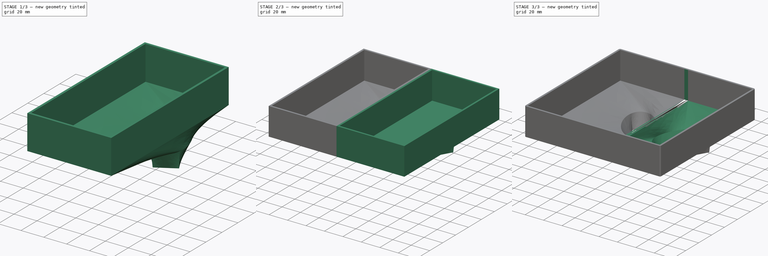
[diagram: build sequence overview — one tinted view per stage of 3, left to right]
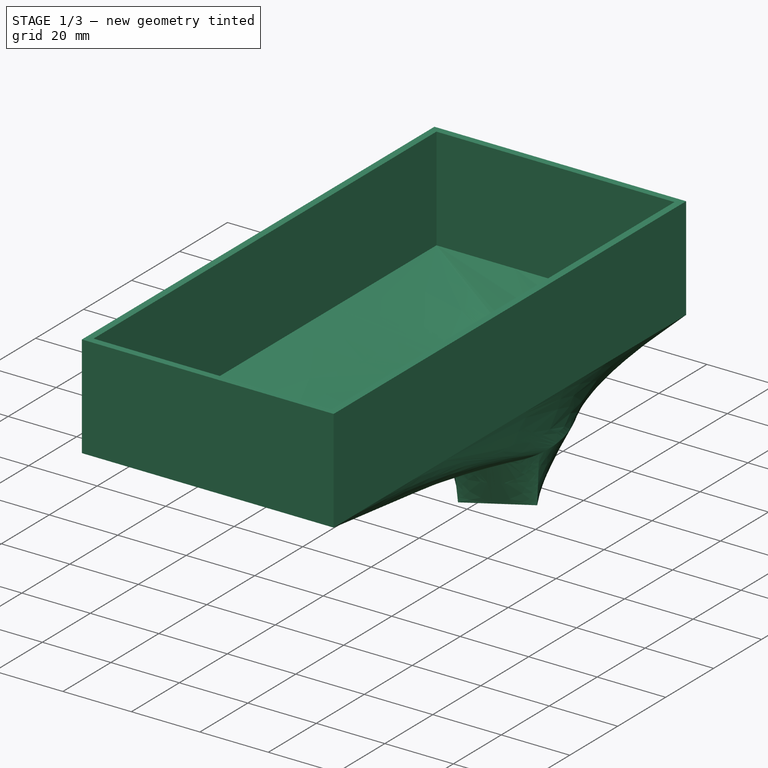
[diagram: stage 1 of 3 — iso view after this stage's code; geometry added in this stage tinted green]
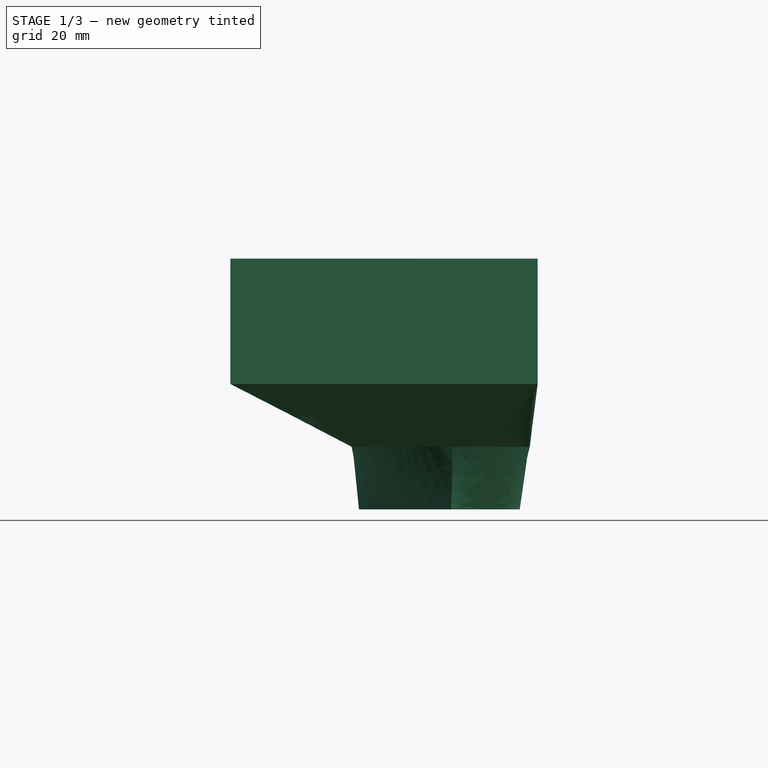
[diagram: stage 1 of 3 — front view after this stage's code; geometry added in this stage tinted green]
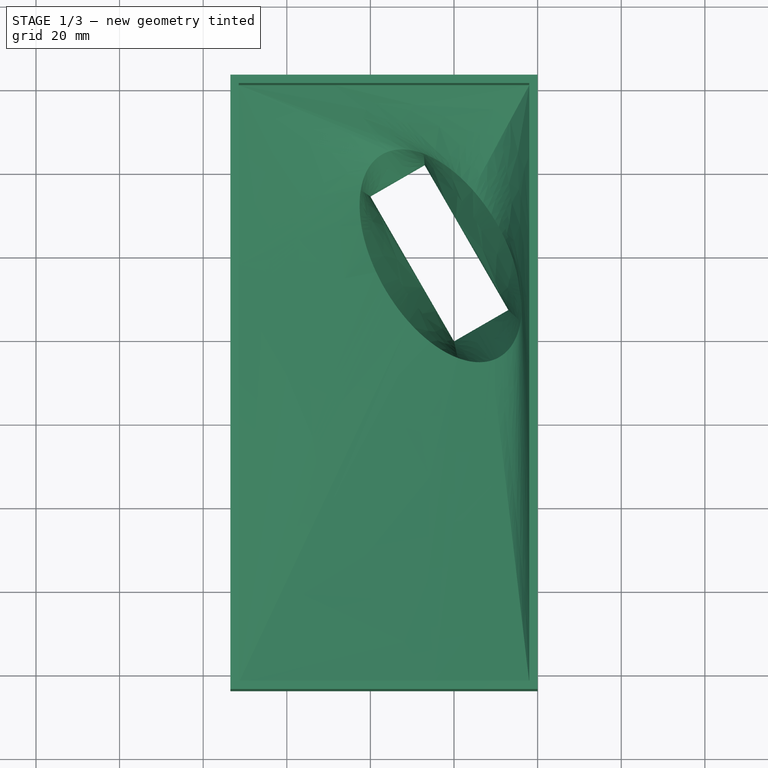
[diagram: stage 1 of 3 — top view after this stage's code; geometry added in this stage tinted green]
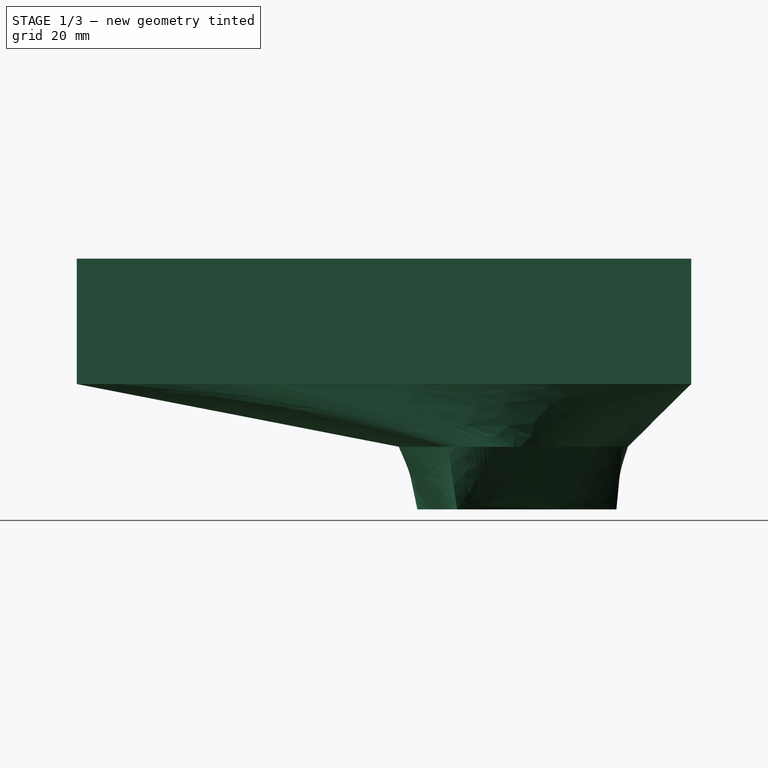
[diagram: stage 1 of 3 — right view after this stage's code; geometry added in this stage tinted green]
FCSTD DOCUMENT  (FreeCAD 0.20R29177 +426 (Git))
Label: seed_chute
License: All rights reserved
LicenseURL: http://en.wikipedia.org/wiki/All_rights_reserved
objects: Sketcher::SketchObject×7, PartDesign::Mirrored×3, PartDesign::AdditiveLoft×1, PartDesign::SubtractiveLoft×1, PartDesign::Pad×1, PartDesign::Pocket×1, PartDesign::Chamfer×1, PartDesign::Body×1, PartDesign::CoordinateSystem×1, App::Part×1
note: 22 computed .brp shape members not serialized (recipe doc carries the construction recipe); baked Part::Feature solids carry a one-line shape summary decoded from their .brp

FEATURE [Sketcher::SketchObject] Sketch  label="base_out"
  FullyConstrained = true
  MapMode = 5
  Support = -> [XY_Plane]
  sketch-geometry (12):
    g0: LineSegment StartX=-4.27745 StartY=6.76795 StartZ=0 EndX=-20.7319 EndY=-2.73205 EndZ=0
    g1: LineSegment StartX=-20.7319 StartY=-2.73205 StartZ=0 EndX=-42.7319 EndY=35.3731 EndZ=0
    g2: LineSegment StartX=-42.7319 StartY=35.3731 StartZ=0 EndX=-26.2774 EndY=44.8731 EndZ=0
    g3: LineSegment StartX=-26.2774 StartY=44.8731 StartZ=0 EndX=-4.27745 EndY=6.76795 EndZ=0
    g4: LineSegment StartX=-27.0095 StartY=42.141 StartZ=0 EndX=-39.9999 EndY=34.641 EndZ=0
    g5: LineSegment StartX=-39.9999 StartY=34.641 StartZ=0 EndX=-19.9999 EndY=0 EndZ=0
    g6: LineSegment StartX=-19.9999 StartY=0 StartZ=0 EndX=-7.0095 EndY=7.5 EndZ=0
    g7: LineSegment StartX=-7.0095 StartY=7.5 StartZ=0 EndX=-27.0095 EndY=42.141 EndZ=0
    g8: LineSegment StartX=-27.0095 StartY=42.141 StartZ=0 EndX=-28.0095 EndY=43.8731 EndZ=0
    g9: LineSegment StartX=-27.0095 StartY=42.141 StartZ=0 EndX=-25.2774 EndY=43.141 EndZ=0
    g10: LineSegment StartX=-19.9999 StartY=0 StartZ=0 EndX=-18.9999 EndY=-1.73205 EndZ=0
    g11: LineSegment StartX=-19.9999 StartY=0 StartZ=0 EndX=-21.7319 EndY=-1 EndZ=0
  constraints (36):
    c: Coincident(g1,g0)
    c: Coincident(g2,g1)
    c: Coincident(g3,g2)
    c: Coincident(g3,g0)
    c: Parallel(g1,g3)
    c: Parallel(g0,g2)
    c: Perpendicular(g3,g0)
    c: Angle(g-1,g1) = 2.0944
    c: Coincident(g5,g4)
    c: Coincident(g6,g5)
    c: Coincident(g7,g6)
    c: Coincident(g7,g4)
    c: DistanceX(g6,g-1) = 7.0095
    c: Parallel(g6,g0)
    c: Parallel(g6,g4)
    c: Parallel(g5,g7)
    c: Perpendicular(g4,g7)
    c: PointOnObject(g5,g-1)
    c: Coincident(g8,g4)
    c: PointOnObject(g8,g2)
    c: Coincident(g9,g4)
    c: PointOnObject(g9,g3)
    c: Coincident(g10,g5)
    c: PointOnObject(g10,g0)
    c: Coincident(g11,g5)
    c: PointOnObject(g11,g1)
    c: Perpendicular(g5,g11)
    c: Perpendicular(g6,g10)
    c: Perpendicular(g7,g9)
    c: Perpendicular(g8,g4)
    c: Equal(g9,g8)
    c: Equal(g8,g10)
    c: Equal(g10,g11)
    c: Distance(g11) = 2
    c: Distance(g6) = 15
    c: Distance(g7) = 40
FEATURE [Sketcher::SketchObject] Sketch001  label="mid_rect"
  AttachmentOffset = pos=(0,0,15) rot=(0,0,1;0rad)
  FullyConstrained = true
  MapMode = 5
  Placement = pos=(0,0,15) rot=(0,0,1;0rad)
  Support = -> [XY_Plane]
  sketch-geometry (4):
    g0: LineSegment StartX=0 StartY=7.5 StartZ=0 EndX=-23.3827 EndY=-6 EndZ=0
    g1: LineSegment StartX=-23.3827 StartY=-6 StartZ=0 EndX=-48.3827 EndY=37.3013 EndZ=0
    g2: LineSegment StartX=-48.3827 StartY=37.3013 StartZ=0 EndX=-25 EndY=50.8013 EndZ=0
    g3: LineSegment StartX=-25 StartY=50.8013 StartZ=0 EndX=0 EndY=7.5 EndZ=0
  constraints (12):
    c: Coincident(g1,g0)
    c: Coincident(g2,g1)
    c: Coincident(g3,g2)
    c: Coincident(g3,g0)
    c: Perpendicular(g3,g0)
    c: Parallel(g3,g1)
    c: Parallel(g0,g2)
    c: Angle(g-1,g1) = 2.0944
    c: PointOnObject(g0,g-2)
    c: Distance(g0) = 27
    c: Distance(g3) = 50
    c: DistanceY(g-1,g0) = 7.5
FEATURE [Sketcher::SketchObject] Sketch002  label="semifinal_out"
  AttachmentOffset = pos=(0,0,30) rot=(0,0,1;0rad)
  FullyConstrained = true
  MapMode = 5
  Placement = pos=(0,0,30) rot=(0,0,1;0rad)
  Support = -> [XY_Plane]
  sketch-geometry (4):
    g0: LineSegment StartX=-73.5 StartY=62.782 StartZ=0 EndX=0 EndY=62.782 EndZ=0
    g1: LineSegment StartX=0 StartY=62.782 StartZ=0 EndX=0 EndY=-84.218 EndZ=0
    g2: LineSegment StartX=0 StartY=-84.218 StartZ=0 EndX=-73.5 EndY=-84.218 EndZ=0
    g3: LineSegment StartX=-73.5 StartY=-84.218 StartZ=0 EndX=-73.5 EndY=62.782 EndZ=0
  constraints (12):
    c: Coincident(g0,g1)
    c: Coincident(g1,g2)
    c: Coincident(g2,g3)
    c: Coincident(g3,g0)
    c: Horizontal(g0)
    c: Horizontal(g2)
    c: Vertical(g1)
    c: Vertical(g3)
    c: DistanceY(g3,g3) = 147
    c: PointOnObject(g1,g-2)
    c: DistanceX(g2,g2) = 73.5
    c: DistanceY(g-1,g0) = 62.782
FEATURE [Sketcher::SketchObject] Sketch003  label="mid_ellipse_out"
  AttachmentOffset = pos=(0,0,15) rot=(0,0,1;0rad)
  FullyConstrained = true
  MapMode = 5
  Placement = pos=(0,0,15) rot=(0,0,1;0rad)
  Support = -> [XY_Plane]
  sketch-geometry (5):
    g0: Ellipse CenterX=-23.1936 CenterY=20.2155 CenterZ=0 NormalX=0 NormalY=0 NormalZ=1 MajorRadius=30 MinorRadius=17.5 AngleXU=-1.0472
    g1: LineSegment StartX=-8.19358 StartY=-5.76524 StartZ=0 EndX=-38.1936 EndY=46.1963 EndZ=0
    g2: LineSegment StartX=-8.03814 StartY=28.9655 StartZ=0 EndX=-38.349 EndY=11.4655 EndZ=0
    g3: GeomPoint X=-11.0101 Y=-0.886906 Z=0
    g4: GeomPoint X=-35.3771 Y=41.318 Z=0
  constraints (6):
    c: InternalAlignment(g1-g4 -> g0) x4
    c: Angle(g-1,g1) = 2.0944
    c: Distance(g1) = 60
    c: DistanceX(g0) = -23.1936
    c: DistanceY(g0) = 20.2155
    c: Distance(g2) = 35
FEATURE [Sketcher::SketchObject] Sketch004  label="base_in"
  FullyConstrained = true
  MapMode = 5
  Support = -> [XY_Plane]
  sketch-geometry (4):
    g0: LineSegment StartX=-19.9999 StartY=0 StartZ=0 EndX=-7.0095 EndY=7.5 EndZ=0
    g1: LineSegment StartX=-7.0095 StartY=7.5 StartZ=0 EndX=-27.0095 EndY=42.141 EndZ=0
    g2: LineSegment StartX=-27.0095 StartY=42.141 StartZ=0 EndX=-39.9999 EndY=34.641 EndZ=0
    g3: LineSegment StartX=-39.9999 StartY=34.641 StartZ=0 EndX=-19.9999 EndY=0 EndZ=0
  constraints (12):
    c: PointOnObject(g0,g-1)
    c: Coincident(g2,g1)
    c: Coincident(g3,g2)
    c: Coincident(g3,g0)
    c: Coincident(g0,g1)
    c: Perpendicular(g1,g0)
    c: Parallel(g1,g3)
    c: Parallel(g2,g0)
    c: DistanceX(g0,g-1) = 7.0095
    c: Angle(g-1,g3) = 2.0944
    c: Distance(g0) = 15
    c: Distance(g1) = 40
FEATURE [Sketcher::SketchObject] Sketch005  label="mid_ellipse_in"
  AttachmentOffset = pos=(0,0,15) rot=(0,0,1;0rad)
  FullyConstrained = true
  MapMode = 5
  Placement = pos=(0,0,15) rot=(0,0,1;0rad)
  Support = -> [XY_Plane]
  expr: Constraints[4] = Sketch003.Constraints[4]
  expr: Constraints[5] = Sketch003.Constraints[5]
  expr: Constraints[6] = Sketch003.Constraints[6]
  expr: Constraints[7] = Sketch003.Constraints[7]
  expr: Constraints[8] = Sketch003.Constraints[8]
  sketch-geometry (10):
    g0: Ellipse CenterX=-23.1936 CenterY=20.2155 CenterZ=0 NormalX=0 NormalY=0 NormalZ=1 MajorRadius=30 MinorRadius=17.5 AngleXU=-1.0472
    g1: LineSegment StartX=-8.19358 StartY=-5.76524 StartZ=0 EndX=-38.1936 EndY=46.1963 EndZ=0
    g2: LineSegment StartX=-8.03814 StartY=28.9655 StartZ=0 EndX=-38.349 EndY=11.4655 EndZ=0
    g3: GeomPoint X=-11.0101 Y=-0.886906 Z=0
    g4: GeomPoint X=-35.3771 Y=41.318 Z=0
    g5: Ellipse CenterX=-23.1936 CenterY=20.2155 CenterZ=0 NormalX=0 NormalY=0 NormalZ=1 MajorRadius=28 MinorRadius=15.5 AngleXU=-1.0472
    g6: LineSegment StartX=-9.19358 StartY=-4.03319 StartZ=0 EndX=-37.1936 EndY=44.4642 EndZ=0
    g7: LineSegment StartX=-9.77019 StartY=27.9655 StartZ=0 EndX=-36.617 EndY=12.4655 EndZ=0
    g8: GeomPoint X=-11.5344 Y=0.021155 Z=0
    g9: GeomPoint X=-34.8528 Y=40.4099 Z=0
  constraints (11):
    c: InternalAlignment(g1-g4 -> g0) x4
    c: Angle(g-1,g1) = 2.0944
    c: Distance(g1) = 60
    c: DistanceX(g0) = -23.1936
    c: DistanceY(g0) = 20.2155
    c: Distance(g2) = 35
    c: InternalAlignment(g6-g9 -> g5) x4
    c: Coincident(g5,g0)
    c: PointOnObject(g6,g1)
    c: Distance(g7,g2) = 2
    c: Distance(g6,g1) = 2
FEATURE [Sketcher::SketchObject] Sketch006  label="semifinal_in"
  AttachmentOffset = pos=(0,0,30) rot=(0,0,1;0rad)
  FullyConstrained = true
  MapMode = 5
  Placement = pos=(0,0,30) rot=(0,0,1;0rad)
  Support = -> [XY_Plane]
  expr: Constraints[16] = Sketch002.Constraints[8]
  expr: Constraints[18] = Sketch002.Constraints[10]
  expr: Constraints[19] = Sketch002.Constraints[11]
  sketch-geometry (12):
    g0: LineSegment StartX=-71.5 StartY=60.782 StartZ=0 EndX=-2 EndY=60.782 EndZ=0
    g1: LineSegment StartX=-2 StartY=60.782 StartZ=0 EndX=-2 EndY=-82.218 EndZ=0
    g2: LineSegment StartX=-2 StartY=-82.218 StartZ=0 EndX=-71.5 EndY=-82.218 EndZ=0
    g3: LineSegment StartX=-71.5 StartY=-82.218 StartZ=0 EndX=-71.5 EndY=60.782 EndZ=0
    g4: LineSegment StartX=-73.5 StartY=62.782 StartZ=0 EndX=0 EndY=62.782 EndZ=0
    g5: LineSegment StartX=0 StartY=62.782 StartZ=0 EndX=0 EndY=-84.218 EndZ=0
    g6: LineSegment StartX=0 StartY=-84.218 StartZ=0 EndX=-73.5 EndY=-84.218 EndZ=0
    g7: LineSegment StartX=-73.5 StartY=-84.218 StartZ=0 EndX=-73.5 EndY=62.782 EndZ=0
    g8: LineSegment StartX=-71.5 StartY=60.782 StartZ=0 EndX=-71.5 EndY=62.782 EndZ=0
    g9: LineSegment StartX=-71.5 StartY=60.782 StartZ=0 EndX=-73.5 EndY=60.782 EndZ=0
    g10: LineSegment StartX=-2 StartY=-82.218 StartZ=0 EndX=-2 EndY=-84.218 EndZ=0
    g11: LineSegment StartX=-2 StartY=-82.218 StartZ=0 EndX=0 EndY=-82.218 EndZ=0
  constraints (36):
    c: Coincident(g0,g1)
    c: Coincident(g1,g2)
    c: Coincident(g2,g3)
    c: Coincident(g3,g0)
    c: Horizontal(g0)
    c: Horizontal(g2)
    c: Vertical(g1)
    c: Vertical(g3)
    c: Coincident(g4,g5)
    c: Coincident(g5,g6)
    c: Coincident(g6,g7)
    c: Coincident(g7,g4)
    c: Horizontal(g4)
    c: Horizontal(g6)
    c: Vertical(g5)
    c: Vertical(g7)
    c: DistanceY(g7,g7) = 147
    c: PointOnObject(g5,g-2)
    c: DistanceX(g6,g6) = 73.5
    c: DistanceY(g-1,g4) = 62.782
    c: Coincident(g8,g0)
    c: PointOnObject(g8,g4)
    c: Coincident(g9,g0)
    c: PointOnObject(g9,g7)
    c: Horizontal(g9)
    c: Vertical(g8)
    c: Coincident(g10,g1)
    c: PointOnObject(g10,g6)
    c: Vertical(g10)
    c: Coincident(g11,g1)
    c: PointOnObject(g11,g5)
    c: Horizontal(g11)
    c: Equal(g11,g10)
    c: Equal(g10,g9)
    c: Equal(g9,g8)
    c: DistanceY(g8,g8) = 2
FEATURE [PartDesign::AdditiveLoft] AdditiveLoft
  Closed = false
  Profile = -> Sketch
  Ruled = true
  Sections = -> [Sketch003,Sketch002]
FEATURE [PartDesign::SubtractiveLoft] SubtractiveLoft
  BaseFeature = -> AdditiveLoft
  Closed = false
  Profile = -> Sketch004
  Ruled = true
  Sections = -> [Sketch005,Sketch006]
FEATURE [PartDesign::Pad] Pad
  BaseFeature = -> SubtractiveLoft
  Direction = (0,0,1)
  Length = 30
  Length2 = 10
  Profile = -> SubtractiveLoft [Face38]
  Type = 0
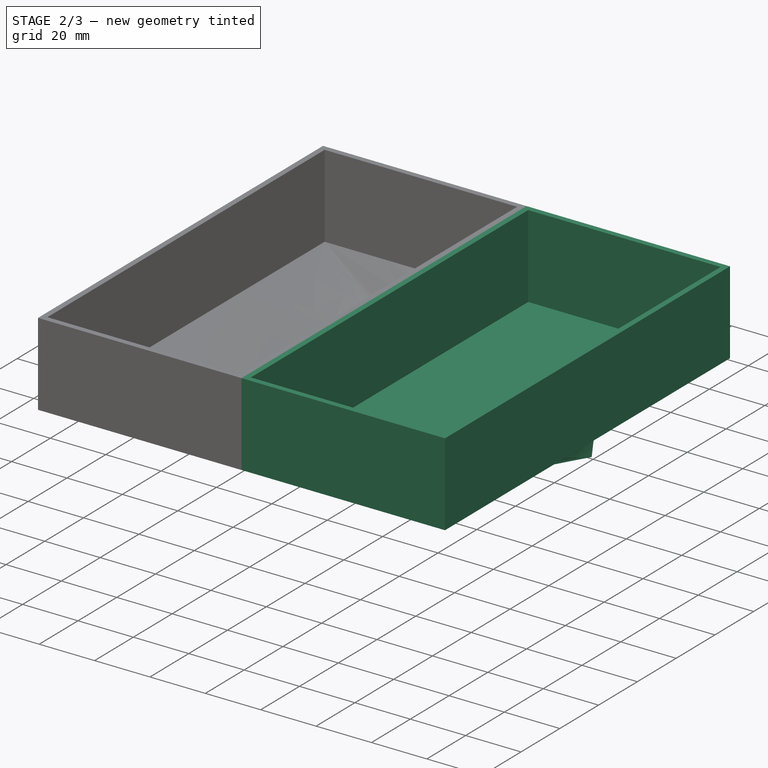
[diagram: stage 2 of 3 — iso view after this stage's code; geometry added in this stage tinted green]
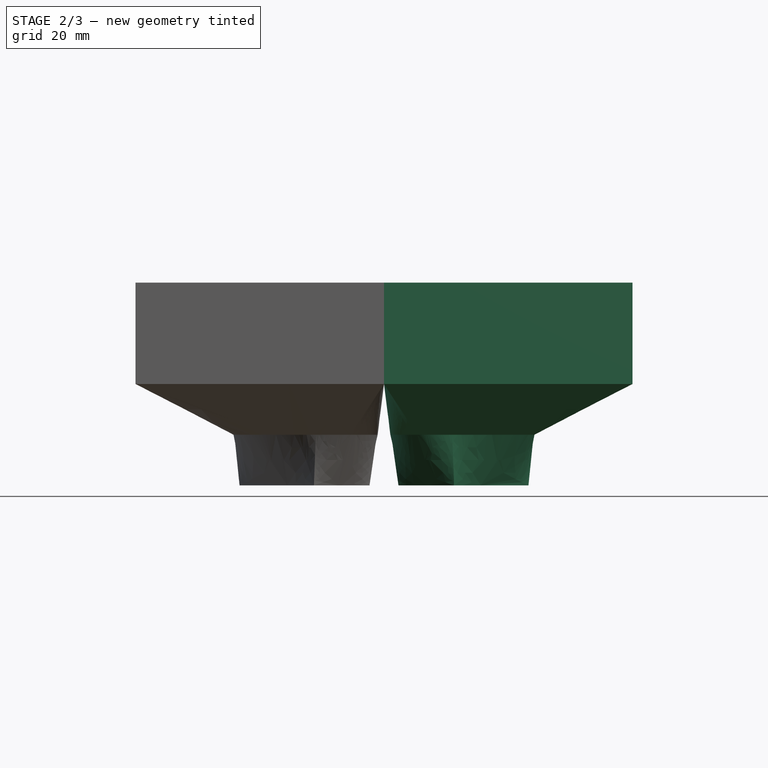
[diagram: stage 2 of 3 — front view after this stage's code; geometry added in this stage tinted green]
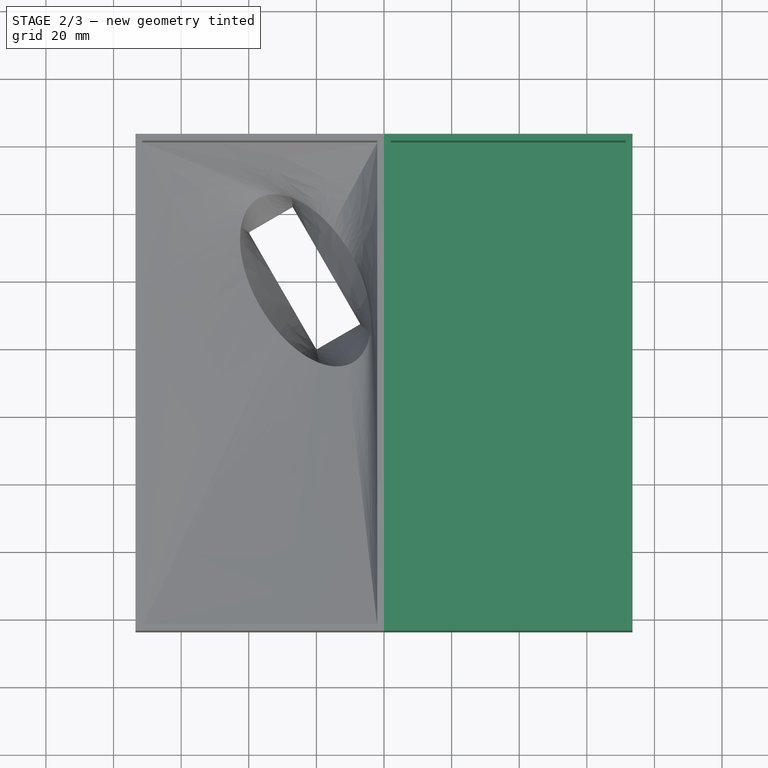
[diagram: stage 2 of 3 — top view after this stage's code; geometry added in this stage tinted green]
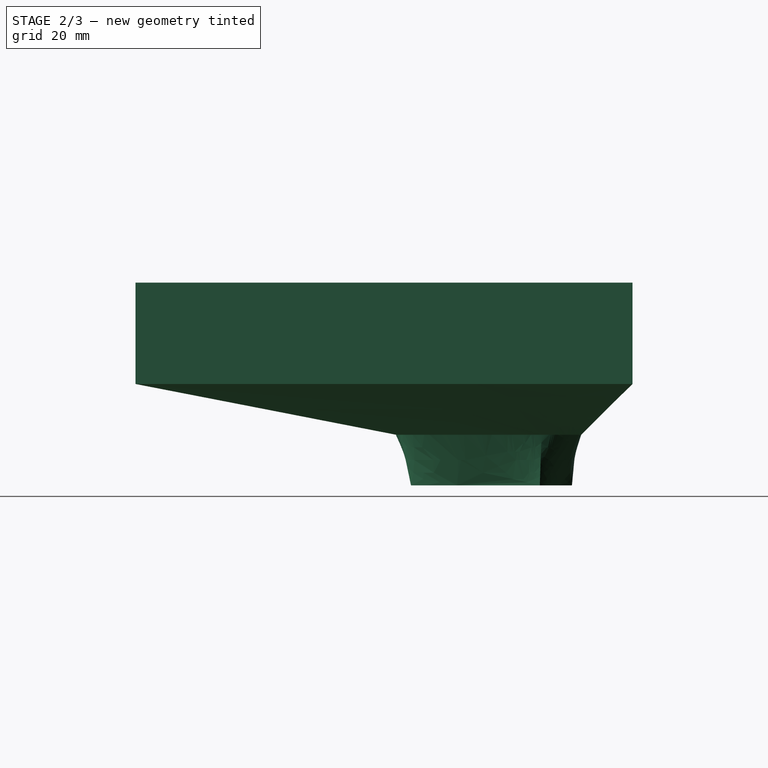
[diagram: stage 2 of 3 — right view after this stage's code; geometry added in this stage tinted green]
FEATURE [PartDesign::Mirrored] Mirrored
  BaseFeature = -> Pad
  MirrorPlane = -> YZ_Plane
  Originals = -> [Pad]
FEATURE [PartDesign::Mirrored] Mirrored001
  BaseFeature = -> Mirrored
  MirrorPlane = -> Sketch [V_Axis]
  Originals = -> [AdditiveLoft]
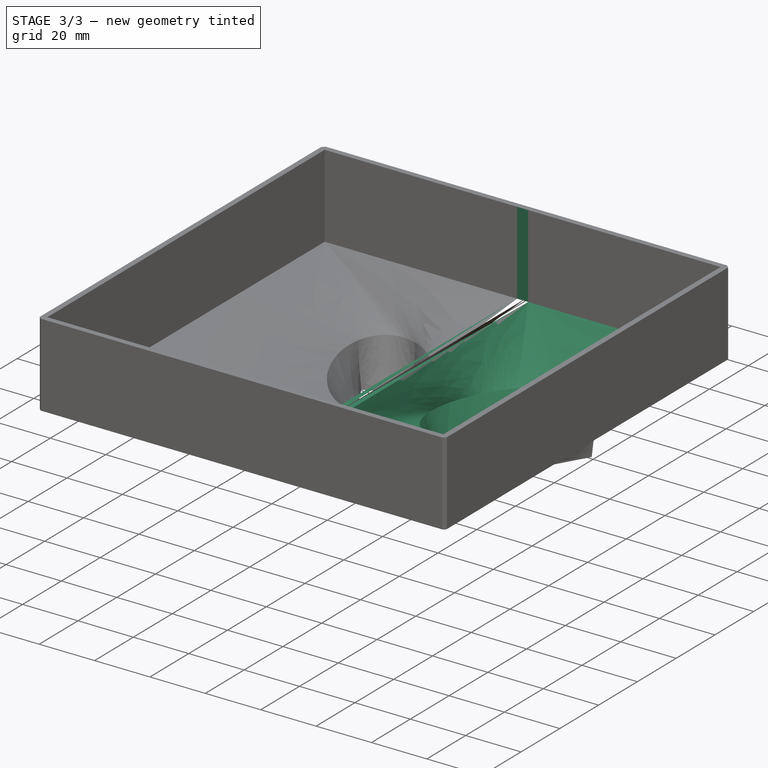
[diagram: stage 3 of 3 — iso view after this stage's code; geometry added in this stage tinted green]
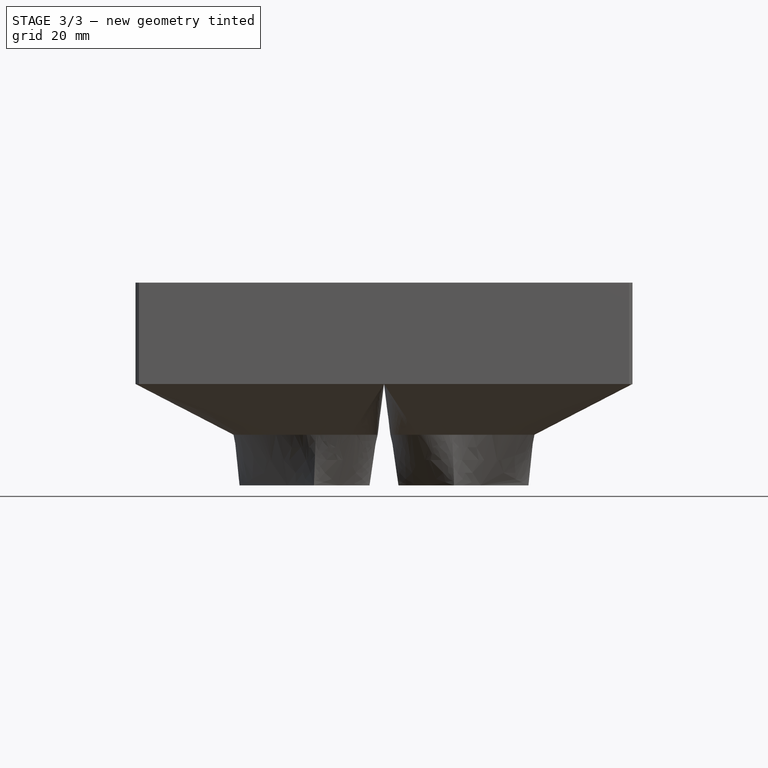
[diagram: stage 3 of 3 — front view after this stage's code; geometry added in this stage tinted green]
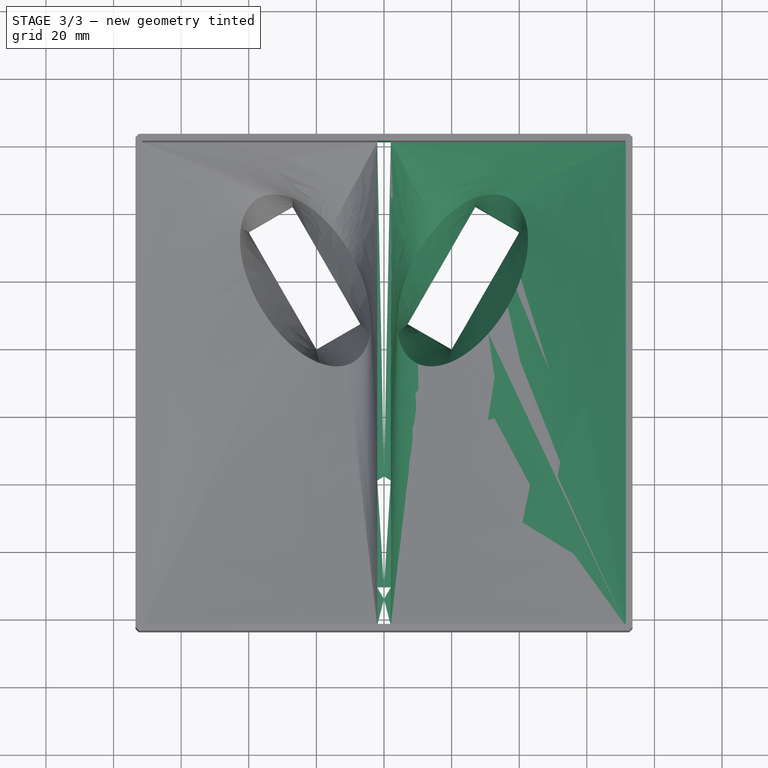
[diagram: stage 3 of 3 — top view after this stage's code; geometry added in this stage tinted green]
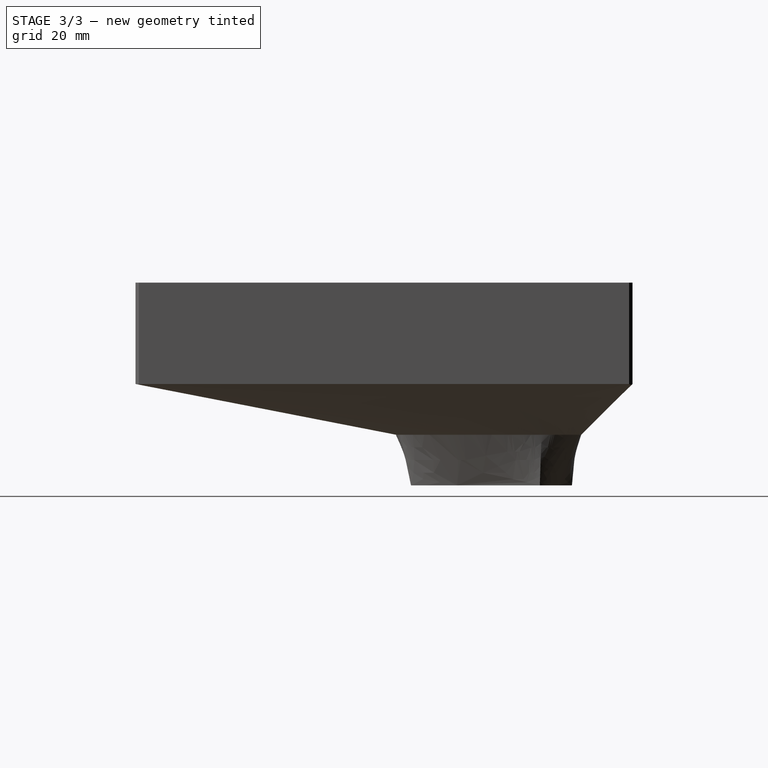
[diagram: stage 3 of 3 — right view after this stage's code; geometry added in this stage tinted green]
FEATURE [PartDesign::Mirrored] Mirrored002
  BaseFeature = -> Mirrored001
  MirrorPlane = -> Sketch004 [V_Axis]
  Originals = -> [SubtractiveLoft]
FEATURE [PartDesign::Pocket] Pocket
  BaseFeature = -> Mirrored002
  Direction = (1,0,0)
  Length = 5
  Length2 = 5
  Profile = -> Mirrored002 [Face50,Face49,Face48]
  Type = 0
FEATURE [PartDesign::Chamfer] Chamfer
  Angle = 45
  Base = -> Pocket [Edge109,Edge107,Edge182,Edge195]
  BaseFeature = -> Pocket
  ChamferType = 0
  FlipDirection = false
  Size = 1
  Size2 = 1
  SupportTransform = false
  UseAllEdges = false
FEATURE [PartDesign::Body] Body
  Group = -> [Sketch,Sketch001,Sketch002,Sketch003,Sketch004,Sketch005,Sketch006,AdditiveLoft,SubtractiveLoft,Pad,Mirrored,Mirrored001,Mirrored002,Pocket,Chamfer]
  Origin = -> Origin
  Tip = -> Chamfer
FEATURE [PartDesign::CoordinateSystem] LCS_0
  AttacherType = Attacher::AttachEngine3D
  MapMode = 2
  Support = -> [X_Axis001]
FEATURE [App::Part] seed_chute
  Group = -> [LCS_0,Body]
  Origin = -> Origin001
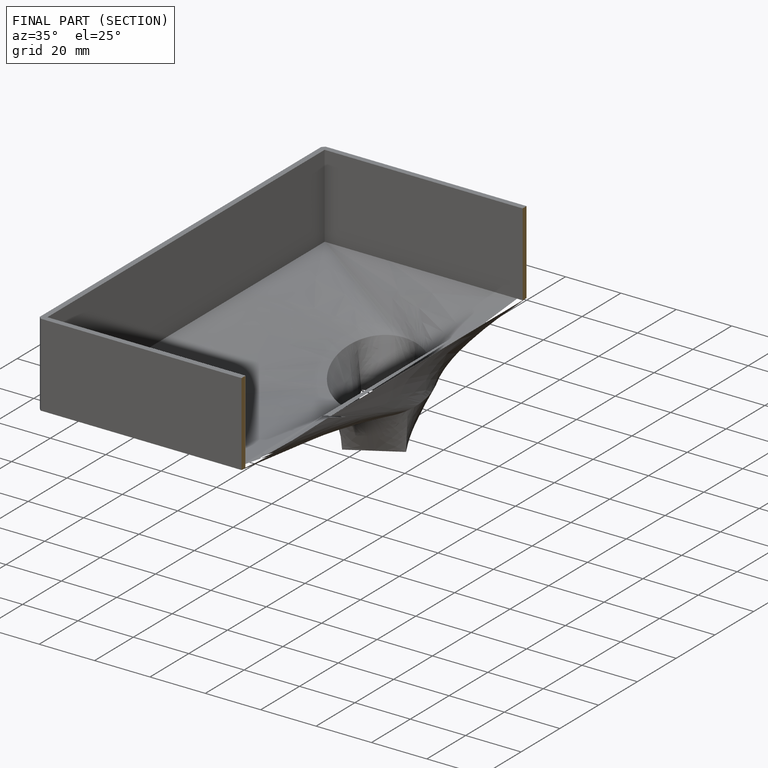
[diagram: finished part — half-section view (interior)]
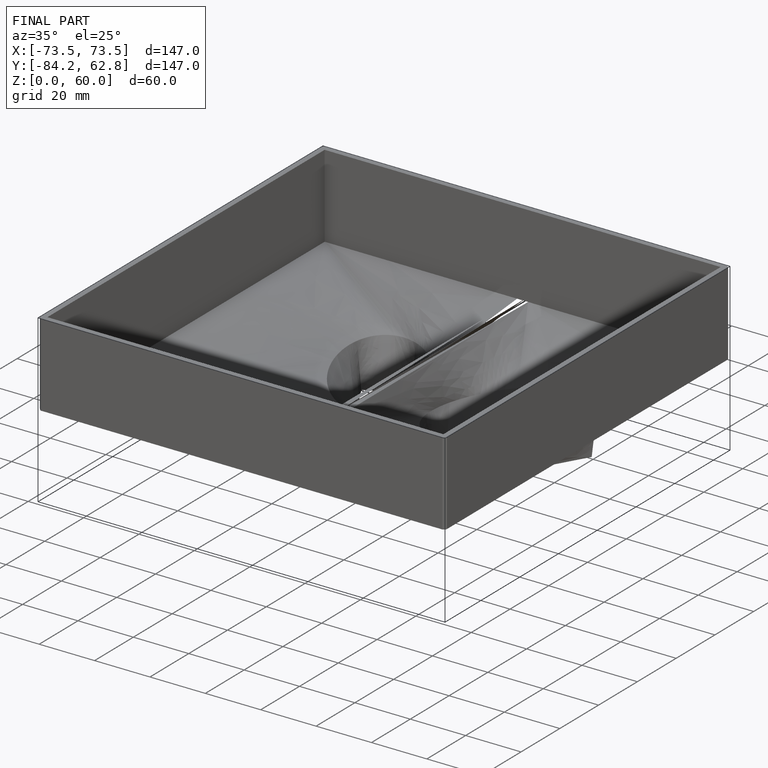
[diagram: finished part — iso view with bounding-box wireframe]
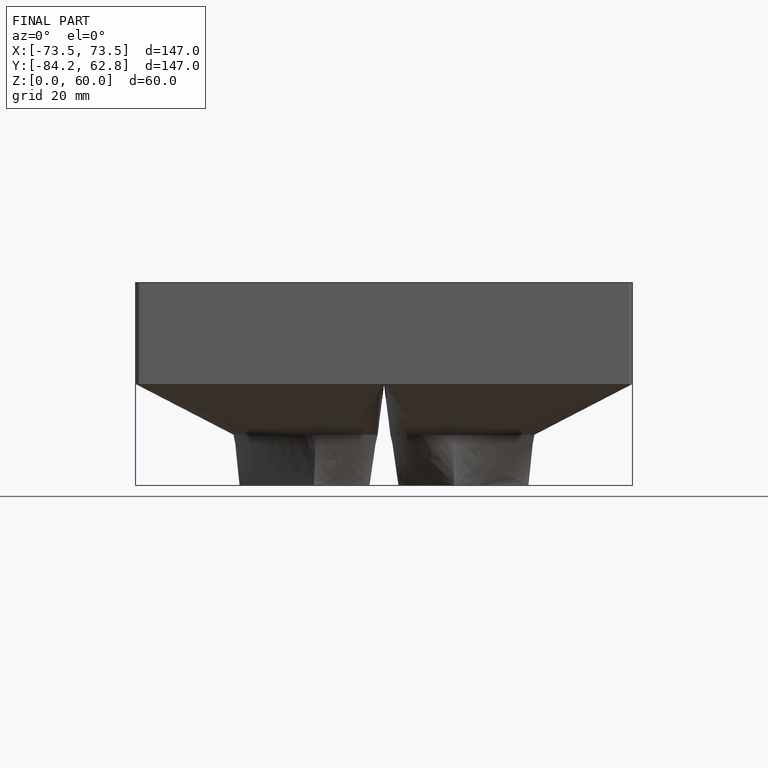
[diagram: finished part — front view with bounding-box wireframe]
